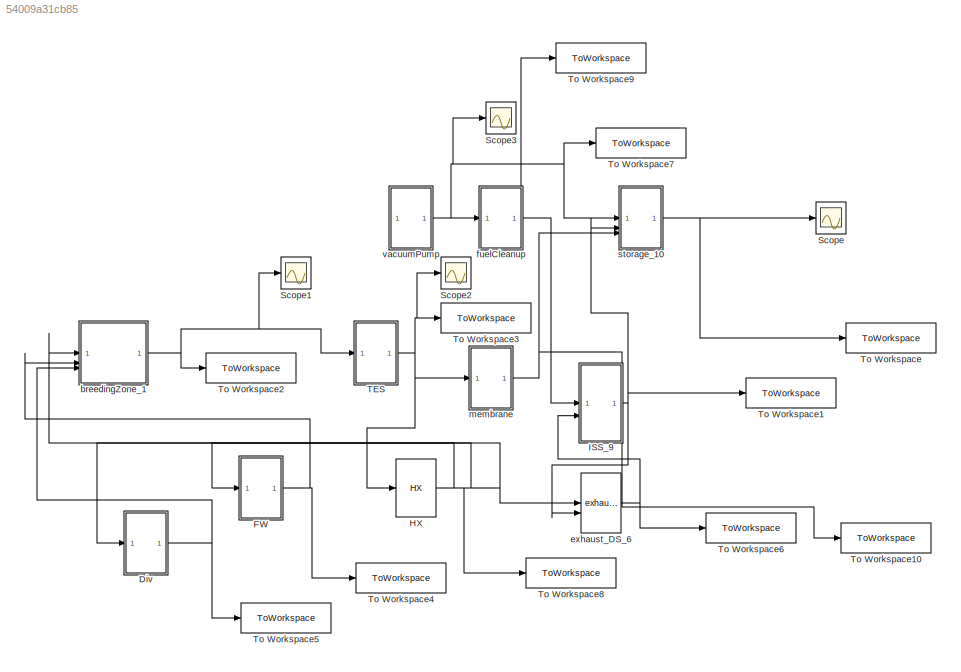
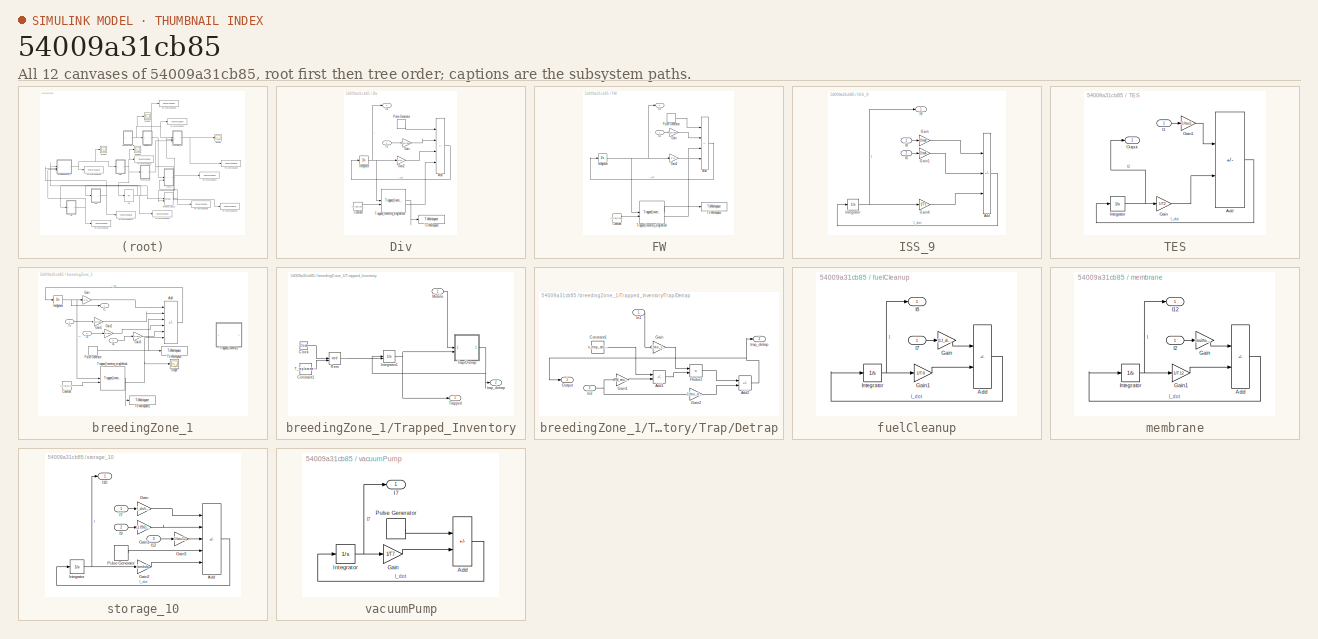
[diagram: thumbnail index - all 12 canvases of the model, root first then tree order]
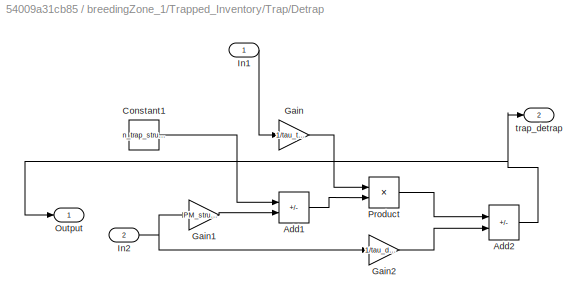
MODEL slx_54009a31cb85
KIND model
CONFIG AbsTol = auto
CONFIG EnableMultiTasking = off
CONFIG FixedStep = auto
CONFIG MaxStep = auto
CONFIG MinStep = 1e-4
CONFIG RelTol = 1e-4
CONFIG SampleTimeConstraint = Unconstrained
CONFIG SolverName = ode15s
CONFIG StartTime = 0.0
CONFIG StopTime = sim_time
BLOCK [SubSystem] Div
  AncestorBlock = arc/divertor_4
  LibrarySourceBlock = arc/divertor_4
BLOCK [Sum] Div/Add
  IconShape = rectangular
  Inputs = ++--
BLOCK [Constant] Div/Constant
  Value = n_trap_tungsten_intrinsic
BLOCK [Gain] Div/Gain
  Gain = f54/tau5
BLOCK [Gain] Div/Gain2
  Gain = 1/T4
BLOCK [Outport] Div/I4
BLOCK [Inport] Div/I5
BLOCK [Integrator] Div/Integrator
BLOCK [DiscretePulseGenerator] Div/Pulse Generator
  Amplitude = fp4*N_dot/TBE
  Period = 1800
  PulseType = Time based
  PulseWidth = AF
BLOCK [ToWorkspace] Div/To Workspace
  FixptAsFi = on
  MaxDataPoints = inf
  SampleTime = -1
  VariableName = I_4_trapped
BLOCK [Reference] Div/Trapped_Inventory_singleblock  REF=arc/Trapped_Inventory_singleblock  (lib defined in slx_1c6c746fb95a, slx_383ab6a6d68a, +1 more)
  SourceBlock = arc/Trapped_Inventory_singleblock
  SourceType = SubSystem
BLOCK [SubSystem] FW
  AncestorBlock = arc/FW_3
  LibrarySourceBlock = arc/FW_3
BLOCK [Sum] FW/Add
  IconShape = rectangular
  Inputs = ++--
BLOCK [Constant] FW/Constant
  Value = n_trap_tungsten_intrinsic
BLOCK [Gain] FW/Gain
  Gain = f53/tau5
BLOCK [Gain] FW/Gain2
  Gain = 1/T3
BLOCK [Outport] FW/I3
BLOCK [Inport] FW/I5
BLOCK [Integrator] FW/Integrator
BLOCK [DiscretePulseGenerator] FW/Pulse Generator
  Amplitude = fp3*N_dot/TBE
  Period = 1800
  PulseType = Time based
  PulseWidth = AF
BLOCK [ToWorkspace] FW/To Workspace
  FixptAsFi = on
  MaxDataPoints = inf
  SampleTime = -1
  VariableName = I_3_trapped
BLOCK [Reference] FW/Trapped_Inventory_singleblock  REF=arc/Trapped_Inventory_singleblock  (lib defined in slx_1c6c746fb95a, slx_383ab6a6d68a, +1 more)
  SourceBlock = arc/Trapped_Inventory_singleblock
  SourceType = SubSystem
BLOCK [Reference] HX  REF=arc/HX  (lib defined in slx_1c6c746fb95a, slx_383ab6a6d68a, +1 more)
  SourceBlock = arc/HX
  SourceType = SubSystem
  Tag = HX
BLOCK [SubSystem] ISS_9
  AncestorBlock = arc/ISS_9
  LibrarySourceBlock = arc/ISS_9
BLOCK [Sum] ISS_9/Add
  IconShape = rectangular
  Inputs = ++-
BLOCK [Gain] ISS_9/Gain
  Gain = 1/tau8
BLOCK [Gain] ISS_9/Gain1
  Gain = 1/tau6
BLOCK [Gain] ISS_9/Gain4
  Gain = 1/T9
BLOCK [Inport] ISS_9/I6
  Port = 2
BLOCK [Inport] ISS_9/I8
BLOCK [Outport] ISS_9/I9
BLOCK [Integrator] ISS_9/Integrator
BLOCK [Scope] Scope
  Floating = off
  NumInputPorts = 1
  ScopeSpecificationString = Simulink.scopes.TimeScopeBlockCfg('CurrentConfiguration', extmgr.ConfigurationSet(extmgr.Configuration('Core','General UI',true),extmgr.Configuration('Core','Source UI',true),extmgr.Configuration('Sources','WiredSimulink',true,'DataLogging',true),extmgr.Configuration('Visuals','Time Domain',true,'SerializedDisplays',{struct('MinYLimReal','0.68345','MaxYLimReal','3.96644','YLabelReal','','MinYLimMa...<+1347ch>
BLOCK [Scope] Scope1
  Floating = off
  NumInputPorts = 1
  ScopeSpecificationString = Simulink.scopes.TimeScopeBlockCfg('CurrentConfiguration', extmgr.ConfigurationSet(extmgr.Configuration('Core','General UI',true),extmgr.Configuration('Core','Source UI',true),extmgr.Configuration('Sources','WiredSimulink',true,'DataLogging',true,'DataLoggingVariableName','ScopeData2'),extmgr.Configuration('Visuals','Time Domain',true,'SerializedDisplays',{struct('MinYLimReal','-0.00044','MaxYLimRe...<+1392ch>
BLOCK [Scope] Scope2
  Floating = off
  NumInputPorts = 1
  ScopeSpecificationString = Simulink.scopes.TimeScopeBlockCfg('CurrentConfiguration', extmgr.ConfigurationSet(extmgr.Configuration('Core','General UI',true),extmgr.Configuration('Core','Source UI',true),extmgr.Configuration('Sources','WiredSimulink',true,'DataLogging',true,'DataLoggingVariableName','ScopeData3'),extmgr.Configuration('Visuals','Time Domain',true,'SerializedDisplays',{struct('MinYLimReal','0.43865','MaxYLimRea...<+1386ch>
BLOCK [Scope] Scope3
  Floating = off
  NumInputPorts = 1
  ScopeSpecificationString = Simulink.scopes.TimeScopeBlockCfg('CurrentConfiguration', extmgr.ConfigurationSet(extmgr.Configuration('Core','General UI',true),extmgr.Configuration('Core','Source UI',true),extmgr.Configuration('Sources','WiredSimulink',true,'DataLogging',true,'DataLoggingVariableName','ScopeData4'),extmgr.Configuration('Visuals','Time Domain',true,'SerializedDisplays',{struct('MinYLimReal','0.43865','MaxYLimRea...<+1386ch>
BLOCK [SubSystem] TES
  AncestorBlock = arc/TES_2
  LibrarySourceBlock = arc/TES_2
BLOCK [Sum] TES/Add
  IconShape = rectangular
  Inputs = +-
BLOCK [Gain] TES/Gain
  Gain = 1/T2
BLOCK [Gain] TES/Gain1
  Gain = 1/tau1
BLOCK [Inport] TES/I1
BLOCK [Integrator] TES/Integrator
BLOCK [Outport] TES/Output
  IconDisplay = Signal name
BLOCK [ToWorkspace] To Workspace
  FixptAsFi = on
  MaxDataPoints = inf
  SampleTime = -1
  VariableName = I_11
BLOCK [ToWorkspace] To Workspace1
  FixptAsFi = on
  MaxDataPoints = inf
  SampleTime = -1
  VariableName = I_9
BLOCK [ToWorkspace] To Workspace10
  FixptAsFi = on
  MaxDataPoints = inf
  SampleTime = -1
  VariableName = I_12
BLOCK [ToWorkspace] To Workspace2
  FixptAsFi = on
  MaxDataPoints = inf
  SampleTime = -1
  VariableName = I_1
BLOCK [ToWorkspace] To Workspace3
  FixptAsFi = on
  MaxDataPoints = inf
  SampleTime = -1
  VariableName = I_2
BLOCK [ToWorkspace] To Workspace4
  FixptAsFi = on
  MaxDataPoints = inf
  SampleTime = -1
  VariableName = I_3
BLOCK [ToWorkspace] To Workspace5
  FixptAsFi = on
  MaxDataPoints = inf
  SampleTime = -1
  VariableName = I_4
BLOCK [ToWorkspace] To Workspace6
  FixptAsFi = on
  MaxDataPoints = inf
  SampleTime = -1
  VariableName = I_6
BLOCK [ToWorkspace] To Workspace7
  FixptAsFi = on
  MaxDataPoints = inf
  SampleTime = -1
  VariableName = I_7
BLOCK [ToWorkspace] To Workspace8
  FixptAsFi = on
  MaxDataPoints = inf
  SampleTime = -1
  VariableName = I_5
BLOCK [ToWorkspace] To Workspace9
  FixptAsFi = on
  MaxDataPoints = inf
  SampleTime = -1
  VariableName = I_8
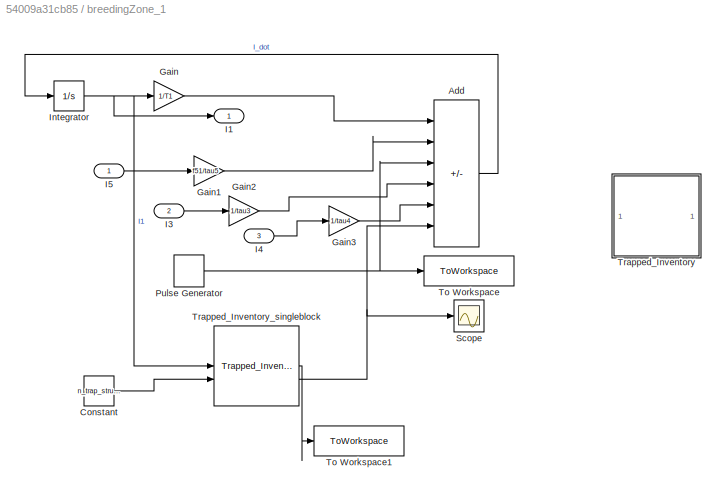
BLOCK [SubSystem] breedingZone_1
  AncestorBlock = arc/breedingZone_1
  LibrarySourceBlock = arc/breedingZone_1
BLOCK [Sum] breedingZone_1/Add
  IconShape = rectangular
  Inputs = -++++-
BLOCK [Constant] breedingZone_1/Constant
  Value = n_trap_structural
BLOCK [Gain] breedingZone_1/Gain
  Gain = 1/T1
BLOCK [Gain] breedingZone_1/Gain1
  Gain = f51/tau5
BLOCK [Gain] breedingZone_1/Gain2
  Gain = 1/tau3
BLOCK [Gain] breedingZone_1/Gain3
  Gain = 1/tau4
BLOCK [Outport] breedingZone_1/I1
  IconDisplay = Signal name
BLOCK [Inport] breedingZone_1/I3
  IconDisplay = Signal name
  Port = 2
BLOCK [Inport] breedingZone_1/I4
  IconDisplay = Signal name
  Port = 3
BLOCK [Inport] breedingZone_1/I5
  IconDisplay = Signal name
BLOCK [Integrator] breedingZone_1/Integrator
BLOCK [DiscretePulseGenerator] breedingZone_1/Pulse Generator
  Amplitude = N_dot * TBR
  Period = 1800
  PulseType = Time based
  PulseWidth = AF
BLOCK [Scope] breedingZone_1/Scope
  Floating = off
  NumInputPorts = 1
  ScopeSpecificationString = Simulink.scopes.TimeScopeBlockCfg('CurrentConfiguration', extmgr.ConfigurationSet(extmgr.Configuration('Core','General UI',true),extmgr.Configuration('Core','Source UI',true),extmgr.Configuration('Sources','WiredSimulink',true,'DataLoggingVariableName','ScopeData1'),extmgr.Configuration('Visuals','Time Domain',true,'SerializedDisplays',{struct('MinYLimReal','-0.00000000000009','MaxYLimReal','0.000...<+1442ch>
BLOCK [ToWorkspace] breedingZone_1/To Workspace
  FixptAsFi = on
  MaxDataPoints = inf
  SampleTime = -1
  SaveFormat = Timeseries
  VariableName = T_generation
BLOCK [ToWorkspace] breedingZone_1/To Workspace1
  FixptAsFi = on
  MaxDataPoints = inf
  SampleTime = -1
  VariableName = I_1_trapped
BLOCK [SubSystem] breedingZone_1/Trapped_Inventory
  AncestorBlock = arc/Trapped_Inventory
BLOCK [Clock] breedingZone_1/Trapped_Inventory/Clock
BLOCK [Constant] breedingZone_1/Trapped_Inventory/Constant1
  Value = T_replacement
BLOCK [Integrator] breedingZone_1/Trapped_Inventory/Integrator1
  ExternalReset = falling
BLOCK [Inport] breedingZone_1/Trapped_Inventory/Mobile
BLOCK [Math] breedingZone_1/Trapped_Inventory/Rem
  Operator = mod
BLOCK [SubSystem] breedingZone_1/Trapped_Inventory/Trap//Detrap
BLOCK [Sum] breedingZone_1/Trapped_Inventory/Trap//Detrap/Add1
  IconShape = rectangular
  Inputs = +-
BLOCK [Sum] breedingZone_1/Trapped_Inventory/Trap//Detrap/Add2
  IconShape = rectangular
  Inputs = +-
BLOCK [Constant] breedingZone_1/Trapped_Inventory/Trap//Detrap/Constant1
  Value = n_trap_structural
BLOCK [Gain] breedingZone_1/Trapped_Inventory/Trap//Detrap/Gain
  Gain = 1/tau_trap_structural/n_solute_structural
BLOCK [Gain] breedingZone_1/Trapped_Inventory/Trap//Detrap/Gain1
  Gain = PM_structural/PM_tritium/M_structural
BLOCK [Gain] breedingZone_1/Trapped_Inventory/Trap//Detrap/Gain2
  Gain = 1/tau_detrap_structural
BLOCK [Inport] breedingZone_1/Trapped_Inventory/Trap//Detrap/In1
BLOCK [Inport] breedingZone_1/Trapped_Inventory/Trap//Detrap/In2
  Port = 2
BLOCK [Outport] breedingZone_1/Trapped_Inventory/Trap//Detrap/Output
BLOCK [Product] breedingZone_1/Trapped_Inventory/Trap//Detrap/Product
BLOCK [Outport] breedingZone_1/Trapped_Inventory/Trap//Detrap/trap_detrap
  Port = 2
BLOCK [Outport] breedingZone_1/Trapped_Inventory/Trapped
BLOCK [Outport] breedingZone_1/Trapped_Inventory/trap_detrap
  Port = 2
BLOCK [Reference] breedingZone_1/Trapped_Inventory_singleblock  REF=arc/Trapped_Inventory_singleblock  (lib defined in slx_1c6c746fb95a, slx_383ab6a6d68a, +1 more)
  SourceBlock = arc/Trapped_Inventory_singleblock
  SourceType = SubSystem
BLOCK [Reference] exhaust_DS_6  REF=arc/exhaust_DS  (lib defined in slx_1c6c746fb95a, slx_383ab6a6d68a, +1 more)
  SourceBlock = arc/exhaust_DS
  SourceType = SubSystem
BLOCK [SubSystem] fuelCleanup
  AncestorBlock = arc/fuelCleanUp
BLOCK [Sum] fuelCleanup/Add
  IconShape = rectangular
  Inputs = +-
BLOCK [Gain] fuelCleanup/Gain
  Gain = (1-f_dir)/tau7
BLOCK [Gain] fuelCleanup/Gain1
  Gain = 1/T8
BLOCK [Inport] fuelCleanup/I7
BLOCK [Outport] fuelCleanup/I8
BLOCK [Integrator] fuelCleanup/Integrator
BLOCK [SubSystem] membrane
  AncestorBlock = arc/fuelCleanUp_8
  LibrarySourceBlock = arc/fuelCleanUp_8
BLOCK [Sum] membrane/Add
  IconShape = rectangular
  Inputs = +-
BLOCK [Gain] membrane/Gain
  Gain = eta2/tau2
BLOCK [Gain] membrane/Gain1
  Gain = 1/T12
BLOCK [Outport] membrane/I12
BLOCK [Inport] membrane/I2
BLOCK [Integrator] membrane/Integrator
BLOCK [SubSystem] storage_10
  AncestorBlock = arc/storage_10
  LibrarySourceBlock = arc/storage_10
BLOCK [Sum] storage_10/Add
  IconShape = rectangular
  Inputs = +++--
BLOCK [Gain] storage_10/Gain
  Gain = f_dir/tau7
BLOCK [Gain] storage_10/Gain1
  Gain = (1-f96)/tau9
BLOCK [Gain] storage_10/Gain2
  Gain = lambda
BLOCK [Gain] storage_10/Gain3
  Gain = 1/tau12
BLOCK [Outport] storage_10/I10
BLOCK [Inport] storage_10/I12
  Port = 3
BLOCK [Inport] storage_10/I7
BLOCK [Inport] storage_10/I9
  Port = 2
BLOCK [Integrator] storage_10/Integrator
  InitialCondition = I_s_0
BLOCK [DiscretePulseGenerator] storage_10/Pulse Generator
  Amplitude = N_dot/TBE
  Period = 1800
  PulseType = Time based
  PulseWidth = AF
BLOCK [SubSystem] vacuumPump
  AncestorBlock = arc/pump_7
  LibrarySourceBlock = arc/pump_7
BLOCK [Sum] vacuumPump/Add
  IconShape = rectangular
  Inputs = +-
BLOCK [Gain] vacuumPump/Gain
  Gain = 1/T7
BLOCK [Outport] vacuumPump/I7
  IconDisplay = Signal name
BLOCK [Integrator] vacuumPump/Integrator
BLOCK [DiscretePulseGenerator] vacuumPump/Pulse Generator
  Amplitude = (1-TBE-fp3-fp4)*N_dot/TBE
  Period = 1800
  PulseType = Time based
  PulseWidth = AF
NET Div:1 -> To Workspace5:1, breedingZone_1:3
NET FW:1 -> To Workspace4:1, breedingZone_1:2
NET HX:1 -> Div:1, FW:1, To Workspace8:1, breedingZone_1:1, exhaust_DS_6:1
NET ISS_9:1 -> To Workspace1:1, exhaust_DS_6:2, storage_10:2
NET TES:1 -> HX:1, Scope2:1, To Workspace3:1, membrane:1
NET breedingZone_1:1 -> Scope1:1, TES:1, To Workspace2:1
NET exhaust_DS_6:1 -> ISS_9:2, To Workspace6:1
NET fuelCleanup:1 -> ISS_9:1, To Workspace9:1
NET membrane:1 -> To Workspace10:1, storage_10:3
NET storage_10:1 -> Scope:1, To Workspace:1
NET vacuumPump:1 -> Scope3:1, To Workspace7:1, fuelCleanup:1, storage_10:1
note: NET lines group one-source signal fan-out (src -> all destinations, sorted); 1:1 wires keep LINE
